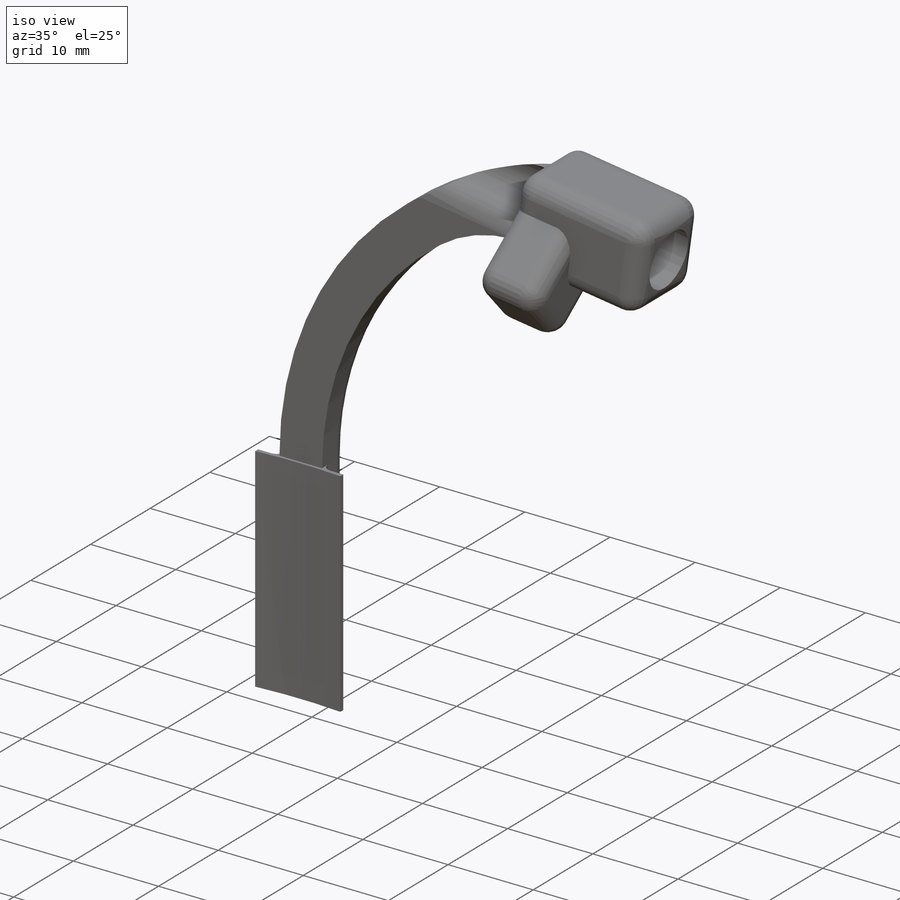
[diagram: iso view]
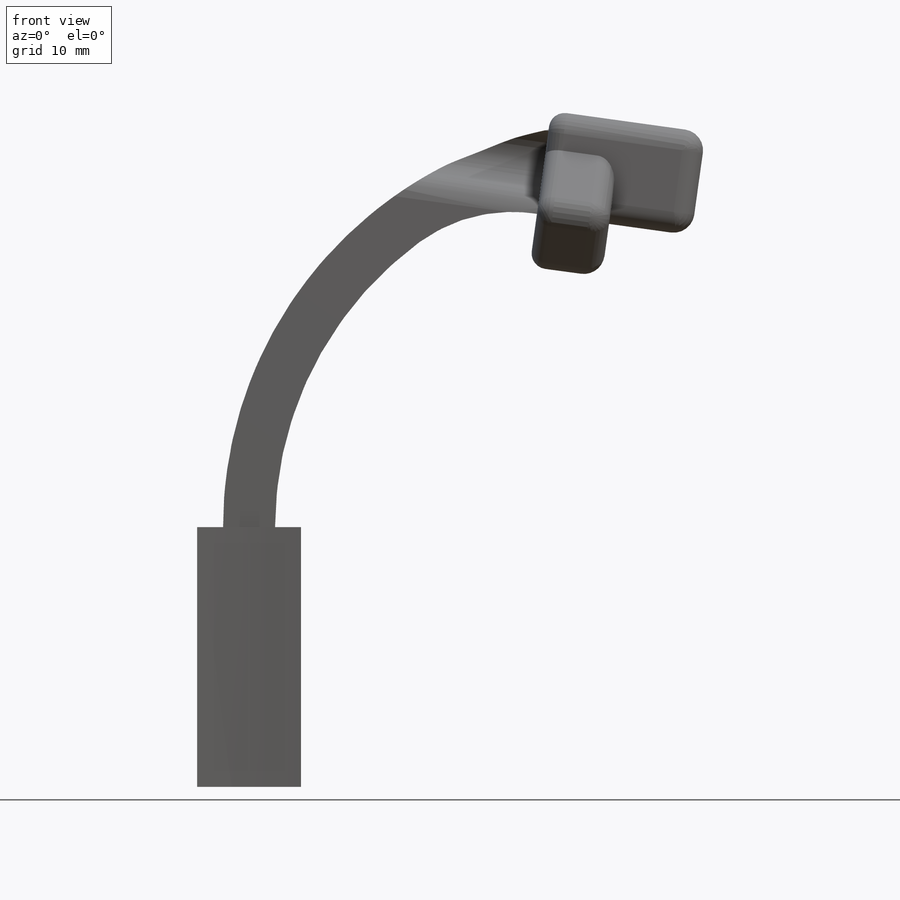
[diagram: front view]
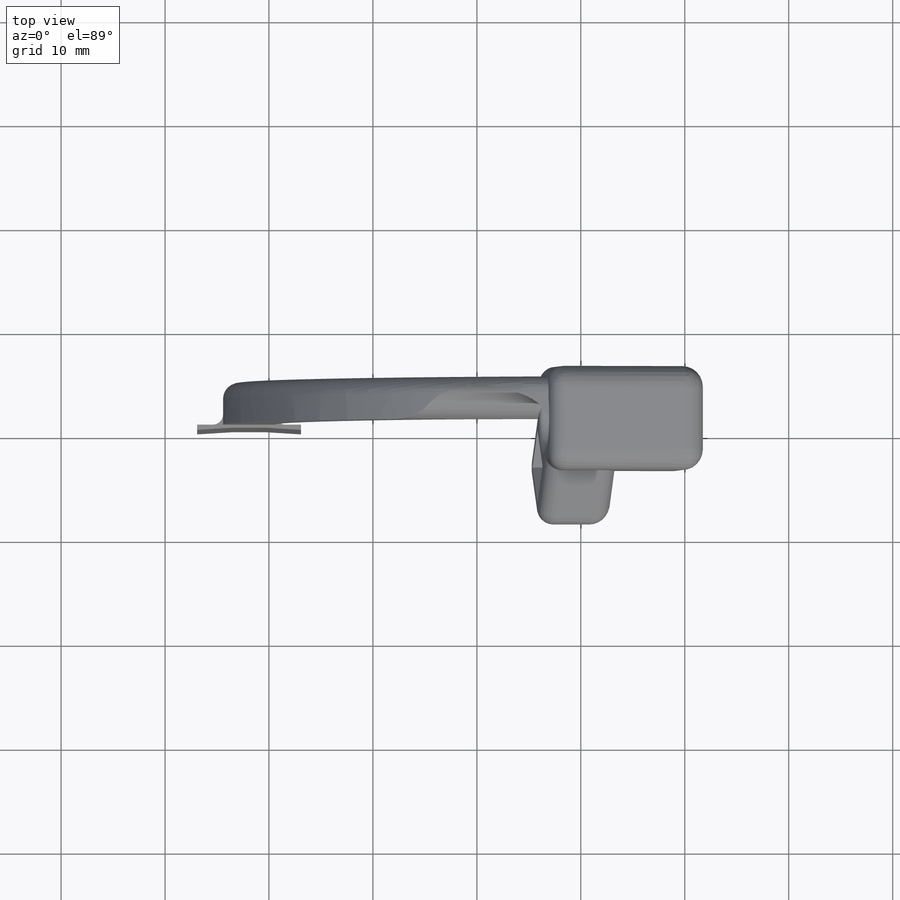
[diagram: top view]
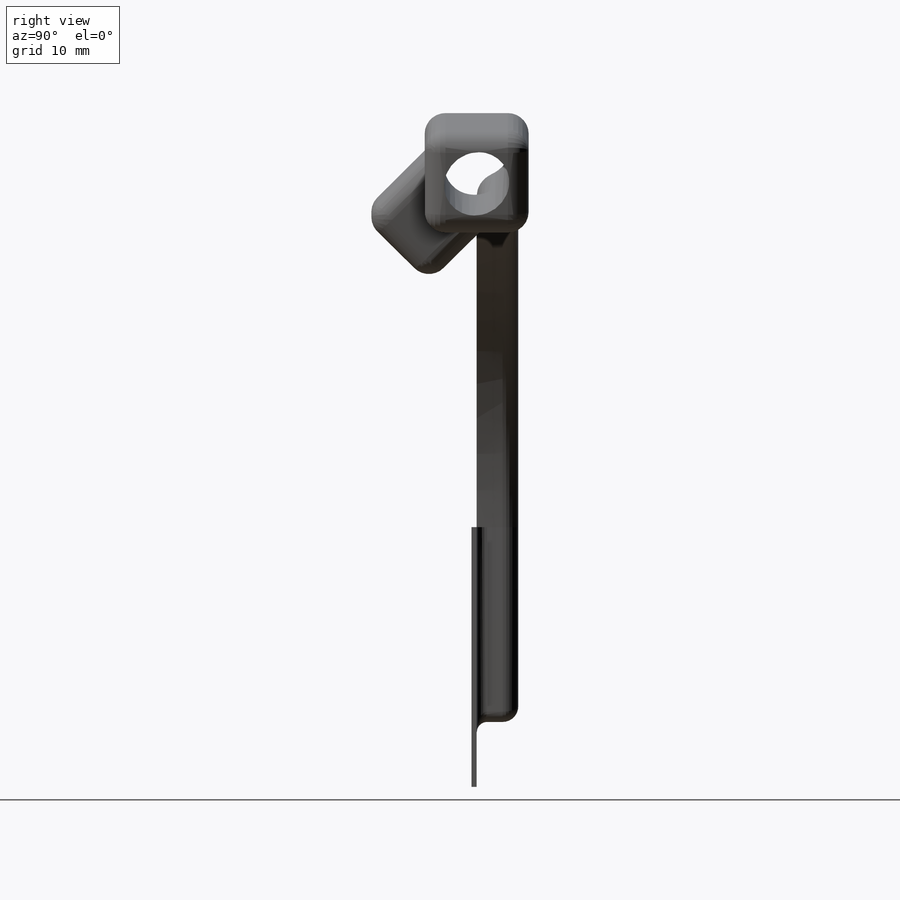
[diagram: right view]
SOLIDWORKS PART (.sldprt)
format: sldprt  version: not decoded by parser v0  size: 494,080 bytes
history: native  units: mm
features: fillet x9, sketch x7, extrude x5, cut_extrude x2, material x1 (+13 scaffold rows collapsed)
feature tree (37):
  scaffold x13  (default folders/planes/origin — collapsed)
  material  "Material <not specified>"
  sketch  "Sketch1"  dims[D1=0.602mm D2=16.165mm D3=10.0mm D4=0.5mm]
  extrude  "Boss-Extrude1"  Depth=25mm
  sketch  "Sketch3"  dims[D4=34.0mm D1=2.5mm D2=2.5mm D3=6.25mm]
  extrude  "Boss-Extrude2"  Depth=4mm
  sketch  "Sketch4"  dims[c1.D1=15.0mm c1.D2=10.0mm c1.D3=~17.078131mm c2.D3=~7.91352deg]
  extrude  "Boss-Extrude4"  Depth=5mm
  sketch  "Sketch5"  dims[c1.D1=6.0mm c1.D2=6.4mm c1.D3=10.0mm c2.D3=36.5585deg c3.D3=~2.443049mm c4.D3=36.5585deg]
  sketch  "Sketch6"
  extrude  "Boss-Extrude5"  [1 undecoded]
  cut_extrude  "Cut-Extrude1"  Depth=5mm
  sketch  "Sketch8"  dims[c1.D1=5.0mm c1.D2=5.0mm c1.D3=~3.585086mm c2.D3=45.0deg c2.D4=2.0mm c2.D5=2.0mm c2.D6=2.0mm c2.D7=4.0mm]
  extrude  "Boss-Extrude6"  Depth=7mm
  sketch  "Sketch9"  dims[D1=2.0mm D2=5.0mm D3=2.0mm D4=5.0mm]
  cut_extrude  "Cut-Extrude3"  Depth=5mm
  fillet  "Fillet2"  Radius=15mm
  fillet  "Fillet1"  Radius=2mm
  fillet  "Fillet4"  Radius=1.5mm
  fillet  "Fillet5"  Radius=0.5mm
  fillet  "Fillet7"  Radius=3mm
  fillet  "Fillet14"  Radius=1.5mm
  fillet  "Fillet15"  Radius=1mm
  fillet  "Fillet16"  Radius=1mm
  fillet  "Fillet18"  Radius=0.5mm
decode coverage: 21 of 23 modeling features carry decoded parameters
note: ~ marks probable driven/reference dimensions
note: 1 parameter value undecoded
note: suppression state not decoded; provenance and decode notes live in map.json
